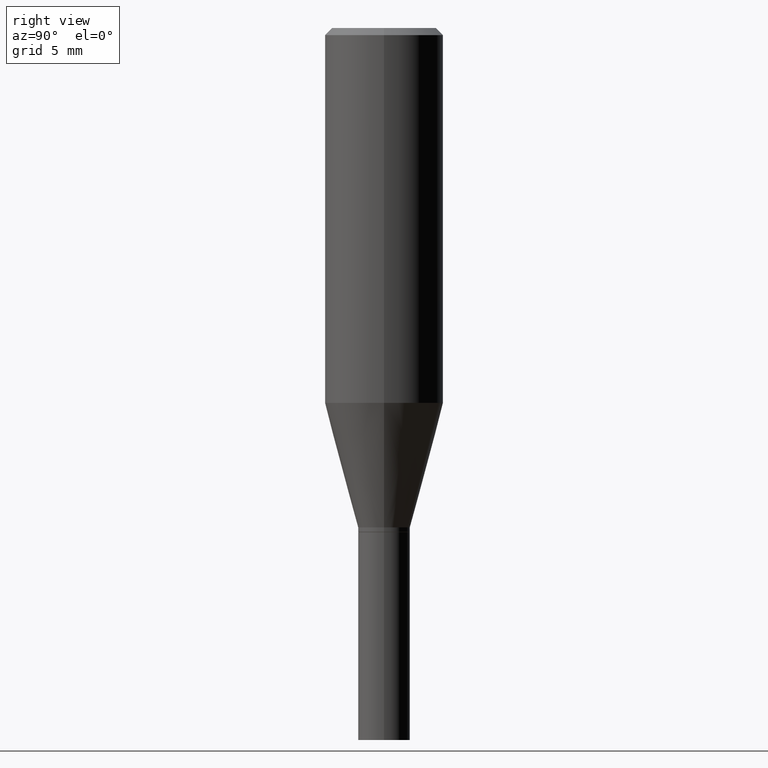
[diagram: clean part render]
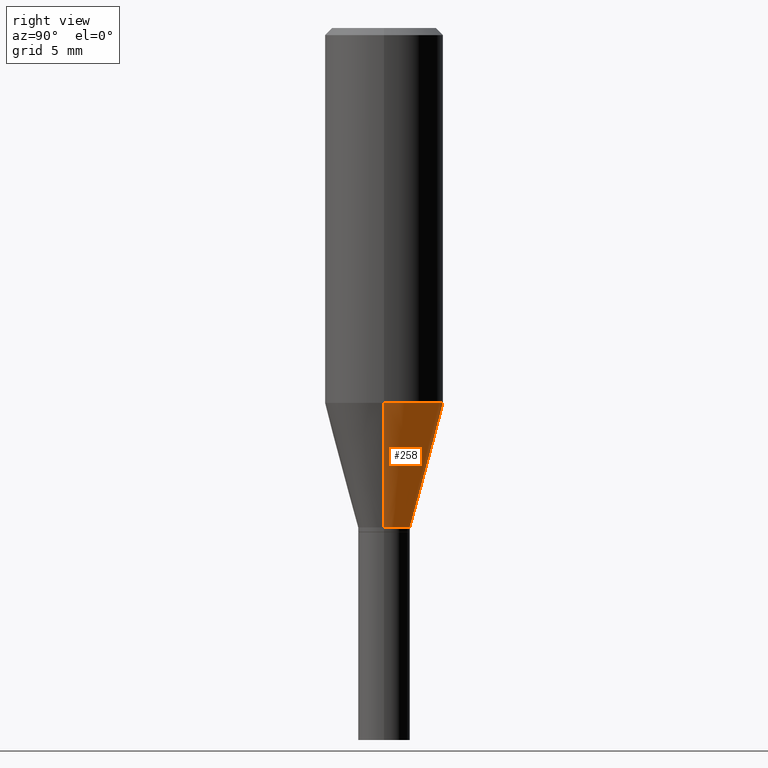
[diagram: same view with one face highlighted and labeled with its STEP entity id]
A machine part, right view. The second image highlights one B-rep face of the part: STEP entity #258.
In plain terms, the highlighted conical surface has half-angle 15 deg.
Its self-contained STEP definition (entity closure, byte-faithful):
#4 = ORIENTED_EDGE ( 'NONE', *, *, #311, .T. ) ;
#6 = ORIENTED_EDGE ( 'NONE', *, *, #240, .F. ) ;
#29 = CARTESIAN_POINT ( 'NONE',  ( -0.1250000000000000000, -1.868823830520909276E-15, -0.7896368282279090378 ) ) ;
#32 = FACE_OUTER_BOUND ( 'NONE', #90, .T. ) ;
#35 = DIRECTION ( 'NONE',  ( 1.000000000000000000, -6.982962677686268288E-15, 0.000000000000000000 ) ) ;
#41 = DIRECTION ( 'NONE',  ( 1.000000000000000000, -6.982962677686266711E-15, 0.000000000000000000 ) ) ;
#43 = VERTEX_POINT ( 'NONE', #92 ) ;
#49 = ORIENTED_EDGE ( 'NONE', *, *, #341, .F. ) ;
#64 = LINE ( 'NONE', #66, #337 ) ;
#66 = CARTESIAN_POINT ( 'NONE',  ( 0.05470000000000007495, -4.055006426932429417E-15, -1.052000000000000046 ) ) ;
#78 = VERTEX_POINT ( 'NONE', #458 ) ;
#90 = EDGE_LOOP ( 'NONE', ( #4, #290, #49, #6 ) ) ;
#92 = CARTESIAN_POINT ( 'NONE',  ( 0.1250000000000000000, -3.629872584931818241E-15, -0.7896368282279090378 ) ) ;
#102 = AXIS2_PLACEMENT_3D ( 'NONE', #115, #226, #35 ) ;
#115 = CARTESIAN_POINT ( 'NONE',  ( 2.572633184106763848E-29, -3.673038368462989448E-15, -1.052000000000000046 ) ) ;
#118 = CIRCLE ( 'NONE', #102, 0.05470000000000007495 ) ;
#135 = CARTESIAN_POINT ( 'NONE',  ( 2.572633184106763848E-29, -3.673038368462989448E-15, -1.052000000000000046 ) ) ;
#145 = CARTESIAN_POINT ( 'NONE',  ( 1.931032231646322477E-29, -2.757002250221034902E-15, -0.7896368282279090378 ) ) ;
#173 = CONICAL_SURFACE ( 'NONE', #370, 0.05470000000000007495, 0.2617993877991500740 ) ;
#188 = VERTEX_POINT ( 'NONE', #29 ) ;
#207 = DIRECTION ( 'NONE',  ( 0.2588190451025213501, 1.565188264969621968E-15, 0.9659258262890682012 ) ) ;
#214 = CIRCLE ( 'NONE', #222, 0.1250000000000000000 ) ;
#222 = AXIS2_PLACEMENT_3D ( 'NONE', #145, #319, #41 ) ;
#226 = DIRECTION ( 'NONE',  ( -2.445468806185136597E-29, 3.491481338843145583E-15, 1.000000000000000000 ) ) ;
#238 = VERTEX_POINT ( 'NONE', #380 ) ;
#240 = EDGE_CURVE ( 'NONE', #78, #43, #64, .T. ) ;
#252 = CARTESIAN_POINT ( 'NONE',  ( -0.05470000000000007495, -3.284371492002214064E-15, -1.052000000000000046 ) ) ;
#258 = ADVANCED_FACE ( 'NONE', ( #32 ), #173, .T. ) ;
#276 = DIRECTION ( 'NONE',  ( -2.445468806185136597E-29, 3.491481338843145583E-15, 1.000000000000000000 ) ) ;
#290 = ORIENTED_EDGE ( 'NONE', *, *, #399, .T. ) ;
#311 = EDGE_CURVE ( 'NONE', #78, #238, #118, .T. ) ;
#319 = DIRECTION ( 'NONE',  ( -2.445468806185136597E-29, 3.491481338843145583E-15, 1.000000000000000000 ) ) ;
#337 = VECTOR ( 'NONE', #207, 39.37007874015747433 ) ;
#341 = EDGE_CURVE ( 'NONE', #43, #188, #214, .T. ) ;
#370 = AXIS2_PLACEMENT_3D ( 'NONE', #135, #276, #424 ) ;
#380 = CARTESIAN_POINT ( 'NONE',  ( -0.05470000000000007495, -2.576597661261561867E-15, -1.052000000000000046 ) ) ;
#399 = EDGE_CURVE ( 'NONE', #238, #188, #436, .T. ) ;
#400 = DIRECTION ( 'NONE',  ( -0.2588190451025213501, 5.211531920934551042E-15, 0.9659258262890682012 ) ) ;
#402 = VECTOR ( 'NONE', #400, 39.37007874015747433 ) ;
#424 = DIRECTION ( 'NONE',  ( 1.000000000000000000, -6.982962677686268288E-15, 0.000000000000000000 ) ) ;
#436 = LINE ( 'NONE', #252, #402 ) ;
#458 = CARTESIAN_POINT ( 'NONE',  ( 0.05470000000000007495, -4.055006426932429417E-15, -1.052000000000000046 ) ) ;